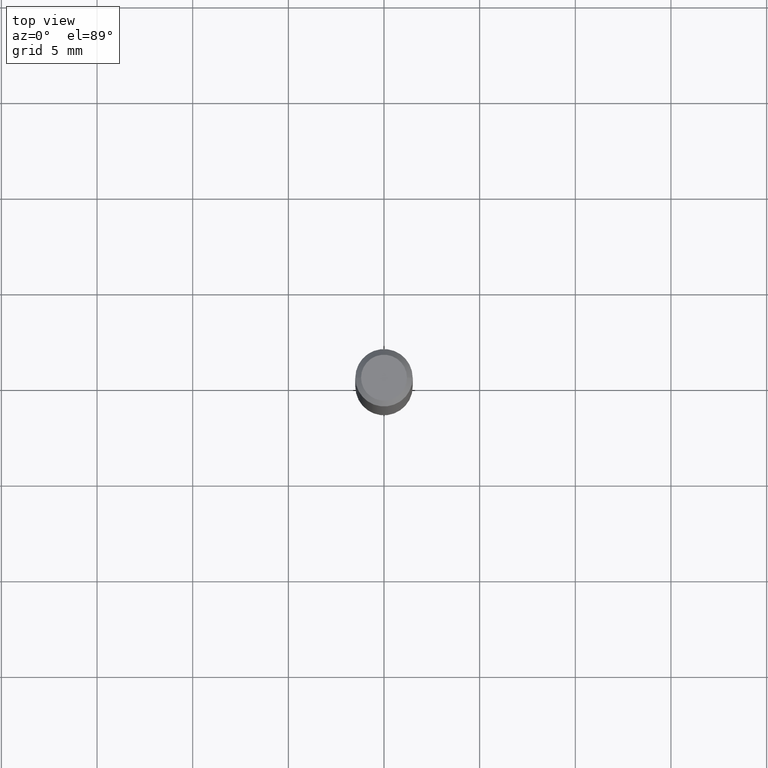
[diagram: clean part render]
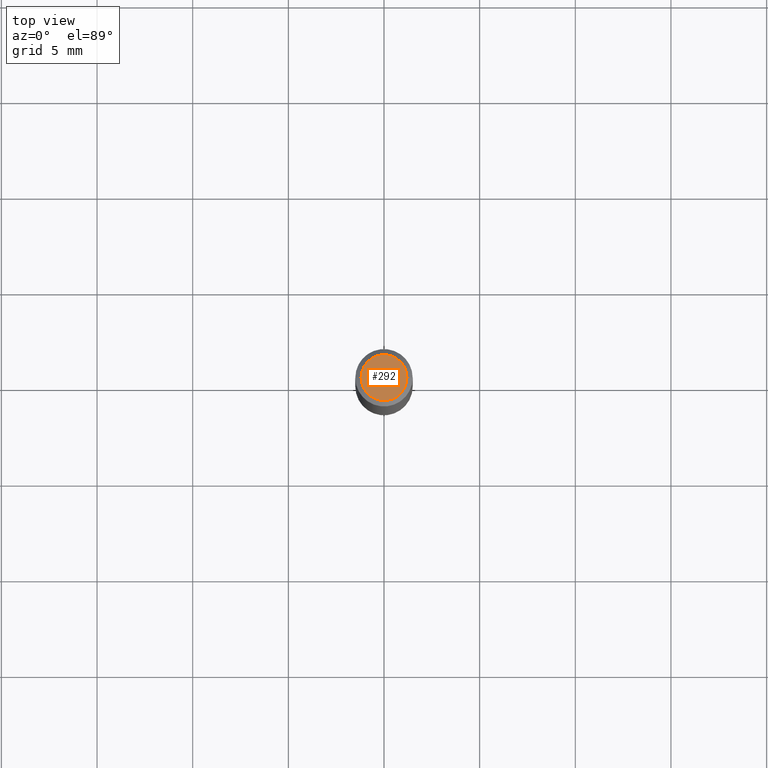
[diagram: same view with one face highlighted and labeled with its STEP entity id]
A machine part, top view. The second image highlights one B-rep face of the part: STEP entity #292.
In plain terms, the highlighted planar face has unit normal (0, -0, -1).
Its self-contained STEP definition (entity closure, byte-faithful):
#45 = EDGE_CURVE ( 'NONE', #471, #214, #424, .T. ) ;
#95 = CARTESIAN_POINT ( 'NONE',  ( 8.265746106709734507E-48, -1.180129479067563789E-33, -3.380025165646692144E-19 ) ) ;
#100 = CARTESIAN_POINT ( 'NONE',  ( 4.132873053354867254E-48, -5.900647395337818946E-34, -1.690012582823346072E-19 ) ) ;
#133 = CIRCLE ( 'NONE', #372, 0.04724000000000000421 ) ;
#166 = DIRECTION ( 'NONE',  ( 2.438088387897960049E-29, -3.491481338843145188E-15, -1.000000000000000000 ) ) ;
#170 = EDGE_CURVE ( 'NONE', #214, #471, #133, .T. ) ;
#211 = CARTESIAN_POINT ( 'NONE',  ( 0.04724000000000000421, -3.852183633974369345E-16, -3.380025165621689721E-19 ) ) ;
#214 = VERTEX_POINT ( 'NONE', #211 ) ;
#234 = ORIENTED_EDGE ( 'NONE', *, *, #170, .T. ) ;
#238 = DIRECTION ( 'NONE',  ( 1.000000000000000000, -6.982962677686266711E-15, 4.876185090822587894E-29 ) ) ;
#240 = AXIS2_PLACEMENT_3D ( 'NONE', #100, #166, #317 ) ;
#285 = FACE_OUTER_BOUND ( 'NONE', #312, .T. ) ;
#292 = ADVANCED_FACE ( 'NONE', ( #285 ), #441, .F. ) ;
#308 = DIRECTION ( 'NONE',  ( 1.000000000000000000, -6.982962677686266711E-15, 4.876185090822587894E-29 ) ) ;
#312 = EDGE_LOOP ( 'NONE', ( #313, #234 ) ) ;
#313 = ORIENTED_EDGE ( 'NONE', *, *, #45, .T. ) ;
#317 = DIRECTION ( 'NONE',  ( -1.000000000000000000, 6.982962677686265922E-15, -4.876176775795935793E-29 ) ) ;
#372 = AXIS2_PLACEMENT_3D ( 'NONE', #95, #438, #238 ) ;
#373 = CARTESIAN_POINT ( 'NONE',  ( -0.04724000000000000421, 3.504923541997677355E-16, -3.380025165670481712E-19 ) ) ;
#386 = DIRECTION ( 'NONE',  ( -2.445468806185136597E-29, 3.491481338843145583E-15, 1.000000000000000000 ) ) ;
#388 = CARTESIAN_POINT ( 'NONE',  ( 8.265746106709734507E-48, -1.180129479067563789E-33, -3.380025165646692144E-19 ) ) ;
#424 = CIRCLE ( 'NONE', #433, 0.04724000000000000421 ) ;
#433 = AXIS2_PLACEMENT_3D ( 'NONE', #388, #386, #308 ) ;
#438 = DIRECTION ( 'NONE',  ( -2.445468806185136597E-29, 3.491481338843145583E-15, 1.000000000000000000 ) ) ;
#441 = PLANE ( 'NONE',  #240 ) ;
#471 = VERTEX_POINT ( 'NONE', #373 ) ;